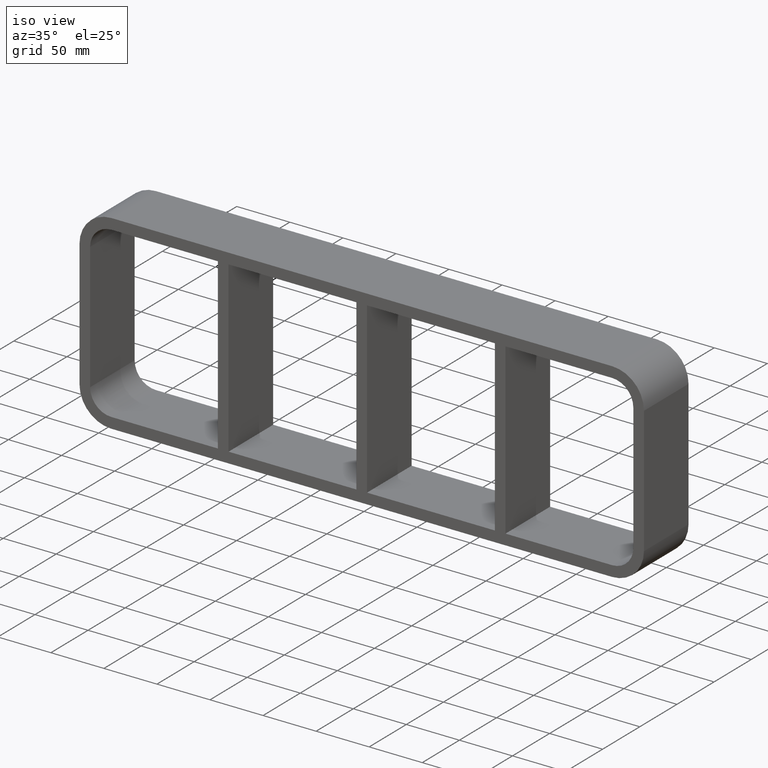
[diagram: clean part render]
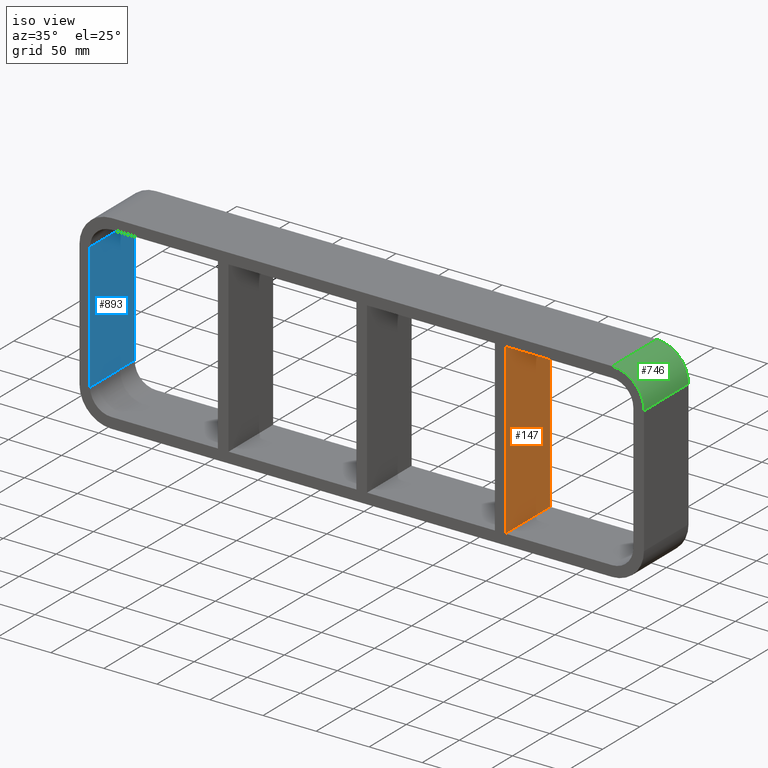
[diagram: same view with three faces highlighted in distinct colors, each labeled with its STEP entity id]
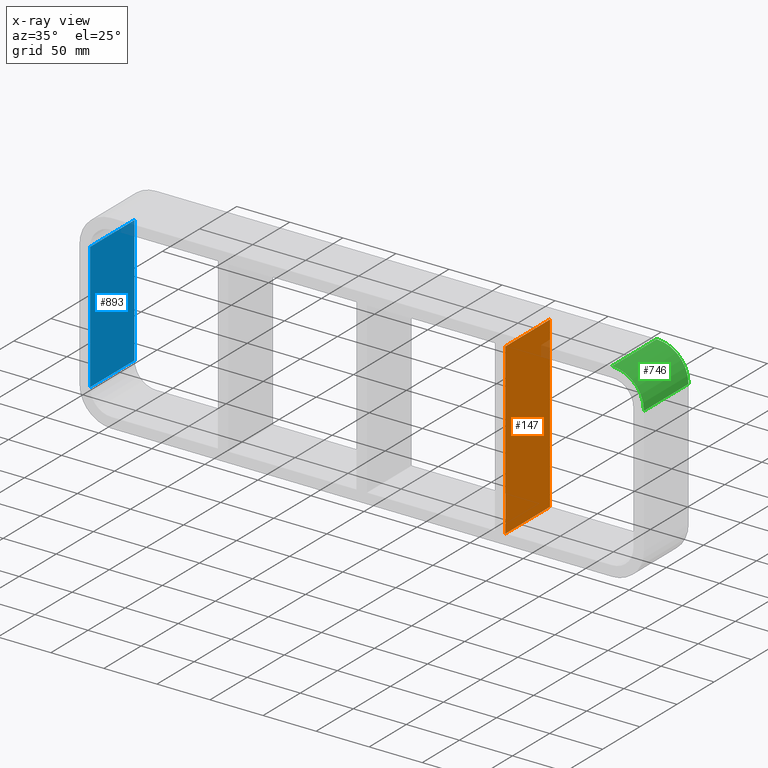
[diagram: x-ray of the same camera — body ghosted, the three highlighted faces saturated]
A machine part, iso view with three faces highlighted in distinct colors.
The next image is the same camera in x-ray (body ghosted, the three faces saturated) — at least one of them is partly hidden behind the body in this view.
Their STEP definitions:

[orange] entity #147 — the highlighted planar face has unit normal (1, 0, 0).
#108=CARTESIAN_POINT('',(135.50000000000728,-3.0,79.750000000000014));
#109=DIRECTION('',(1.0,0.0,0.0));
#110=DIRECTION('',(0.0,0.0,-1.0));
#111=AXIS2_PLACEMENT_3D('',#108,#109,#110);
#112=PLANE('',#111);
#113=CARTESIAN_POINT('',(135.50000000000728,-3.0,79.750000000000014));
#114=VERTEX_POINT('',#113);
#115=CARTESIAN_POINT('',(135.50000000000728,-3.0,-79.74999999998424));
#116=VERTEX_POINT('',#115);
#117=CARTESIAN_POINT('',(135.50000000000728,-3.0,79.750000000000014));
#118=DIRECTION('',(0.0,0.0,-1.0));
#119=VECTOR('',#118,159.49999999998425);
#120=LINE('',#117,#119);
#121=EDGE_CURVE('',#114,#116,#120,.T.);
#122=ORIENTED_EDGE('',*,*,#121,.T.);
#123=CARTESIAN_POINT('',(135.50000000000728,57.0,-79.74999999998424));
#124=VERTEX_POINT('',#123);
#125=CARTESIAN_POINT('',(135.50000000000728,57.000000000000007,-79.750000000000014));
#126=DIRECTION('',(0.0,-1.0,0.0));
#127=VECTOR('',#126,60.000000000000007);
#128=LINE('',#125,#127);
#129=EDGE_CURVE('',#124,#116,#128,.T.);
#130=ORIENTED_EDGE('',*,*,#129,.F.);
#131=CARTESIAN_POINT('',(135.50000000000728,57.0,79.750000000000014));
#132=VERTEX_POINT('',#131);
#133=CARTESIAN_POINT('',(135.50000000000728,57.0,79.750000000000014));
#134=DIRECTION('',(0.0,0.0,-1.0));
#135=VECTOR('',#134,159.49999999998425);
#136=LINE('',#133,#135);
#137=EDGE_CURVE('',#132,#124,#136,.T.);
#138=ORIENTED_EDGE('',*,*,#137,.F.);
#139=CARTESIAN_POINT('',(135.50000000000728,-3.0,79.750000000000014));
#140=DIRECTION('',(0.0,1.0,0.0));
#141=VECTOR('',#140,60.000000000000007);
#142=LINE('',#139,#141);
#143=EDGE_CURVE('',#114,#132,#142,.T.);
#144=ORIENTED_EDGE('',*,*,#143,.F.);
#145=EDGE_LOOP('',(#122,#130,#138,#144));
#146=FACE_OUTER_BOUND('',#145,.T.);
#147=ADVANCED_FACE('',(#146),#112,.T.);

[blue] entity #893 — the highlighted planar face has unit normal (-1, 0, 0).
#640=CARTESIAN_POINT('',(-256.0,-3.0,-59.750000000000014));
#641=VERTEX_POINT('',#640);
#649=CARTESIAN_POINT('',(-256.0,-3.0,59.750000000000014));
#650=VERTEX_POINT('',#649);
#651=CARTESIAN_POINT('',(-256.0,-3.0,-59.750000000000014));
#652=DIRECTION('',(0.0,0.0,1.0));
#653=VECTOR('',#652,119.50000000000003);
#654=LINE('',#651,#653);
#655=EDGE_CURVE('',#641,#650,#654,.T.);
#851=CARTESIAN_POINT('',(-256.0,57.0,59.750000000000014));
#852=VERTEX_POINT('',#851);
#853=CARTESIAN_POINT('',(-256.0,-3.0,59.750000000000014));
#854=DIRECTION('',(0.0,1.0,0.0));
#855=VECTOR('',#854,60.0);
#856=LINE('',#853,#855);
#857=EDGE_CURVE('',#650,#852,#856,.T.);
#870=CARTESIAN_POINT('',(-256.0,0.0,-79.750000000000014));
#871=DIRECTION('',(-1.0,0.0,0.0));
#872=DIRECTION('',(0.0,0.0,1.0));
#873=AXIS2_PLACEMENT_3D('',#870,#871,#872);
#874=PLANE('',#873);
#875=ORIENTED_EDGE('',*,*,#857,.F.);
#876=ORIENTED_EDGE('',*,*,#655,.F.);
#877=CARTESIAN_POINT('',(-256.0,57.0,-59.750000000000014));
#878=VERTEX_POINT('',#877);
#879=CARTESIAN_POINT('',(-256.0,57.0,-59.750000000000014));
#880=DIRECTION('',(0.0,-1.0,0.0));
#881=VECTOR('',#880,60.0);
#882=LINE('',#879,#881);
#883=EDGE_CURVE('',#878,#641,#882,.T.);
#884=ORIENTED_EDGE('',*,*,#883,.F.);
#885=CARTESIAN_POINT('',(-256.0,57.0,59.750000000000021));
#886=DIRECTION('',(0.0,0.0,-1.0));
#887=VECTOR('',#886,119.50000000000003);
#888=LINE('',#885,#887);
#889=EDGE_CURVE('',#852,#878,#888,.T.);
#890=ORIENTED_EDGE('',*,*,#889,.F.);
#891=EDGE_LOOP('',(#875,#876,#884,#890));
#892=FACE_OUTER_BOUND('',#891,.T.);
#893=ADVANCED_FACE('',(#892),#874,.F.);

[green] entity #746 — the highlighted cylindrical surface (partial cylindrical patch) has radius 30 mm, axis along (0, -1, 0).
#568=CARTESIAN_POINT('',(266.0,-3.0,59.750000000000014));
#569=VERTEX_POINT('',#568);
#576=CARTESIAN_POINT('',(236.0,-3.0,89.750000000000014));
#577=VERTEX_POINT('',#576);
#578=CARTESIAN_POINT('',(236.0,-3.0,59.750000000000014));
#579=DIRECTION('',(0.0,1.0,0.0));
#580=DIRECTION('',(0.707106781186547,0.0,0.707106781186547));
#581=AXIS2_PLACEMENT_3D('',#578,#579,#580);
#582=CIRCLE('',#581,30.0);
#583=EDGE_CURVE('',#577,#569,#582,.T.);
#704=CARTESIAN_POINT('',(266.0,57.0,59.750000000000014));
#705=VERTEX_POINT('',#704);
#712=CARTESIAN_POINT('',(266.0,-3.0,59.750000000000014));
#713=DIRECTION('',(0.0,1.0,0.0));
#714=VECTOR('',#713,60.0);
#715=LINE('',#712,#714);
#716=EDGE_CURVE('',#569,#705,#715,.T.);
#722=CARTESIAN_POINT('',(236.0,0.0,59.750000000000014));
#723=DIRECTION('',(0.0,-1.0,0.0));
#724=DIRECTION('',(0.707106781186547,0.0,0.707106781186547));
#725=AXIS2_PLACEMENT_3D('',#722,#723,#724);
#726=CYLINDRICAL_SURFACE('',#725,30.000000000000004);
#727=ORIENTED_EDGE('',*,*,#583,.T.);
#728=ORIENTED_EDGE('',*,*,#716,.T.);
#729=CARTESIAN_POINT('',(236.0,57.0,89.750000000000014));
#730=VERTEX_POINT('',#729);
#731=CARTESIAN_POINT('',(236.0,57.0,59.750000000000014));
#732=DIRECTION('',(0.0,-1.0,0.0));
#733=DIRECTION('',(0.707106781186547,0.0,0.707106781186547));
#734=AXIS2_PLACEMENT_3D('',#731,#732,#733);
#735=CIRCLE('',#734,30.0);
#736=EDGE_CURVE('',#705,#730,#735,.T.);
#737=ORIENTED_EDGE('',*,*,#736,.T.);
#738=CARTESIAN_POINT('',(236.0,57.0,89.750000000000014));
#739=DIRECTION('',(0.0,-1.0,0.0));
#740=VECTOR('',#739,60.0);
#741=LINE('',#738,#740);
#742=EDGE_CURVE('',#730,#577,#741,.T.);
#743=ORIENTED_EDGE('',*,*,#742,.T.);
#744=EDGE_LOOP('',(#727,#728,#737,#743));
#745=FACE_OUTER_BOUND('',#744,.T.);
#746=ADVANCED_FACE('',(#745),#726,.T.);